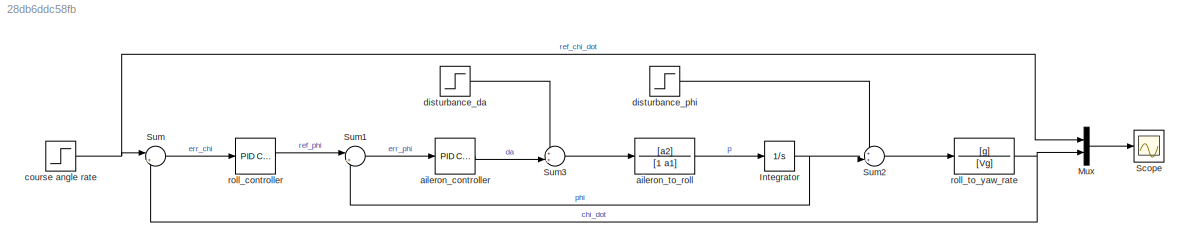
MODEL slx_28db6ddc58fb
KIND model
CONFIG AbsTol = auto
CONFIG EnableMultiTasking = off
CONFIG FixedStep = auto
CONFIG MaxStep = auto
CONFIG MinStep = auto
CONFIG RelTol = 1e-3
CONFIG SampleTimeConstraint = Unconstrained
CONFIG SolverName = VariableStepAuto
CONFIG StartTime = 0.0
CONFIG StopTime = 10.0
BLOCK [Integrator] Integrator
BLOCK [Mux] Mux
  DisplayOption = bar
  Inputs = 2
BLOCK [Scope] Scope
  Floating = off
  NumInputPorts = 1
  ScopeSpecificationString = Simulink.scopes.TimeScopeBlockCfg('CurrentConfiguration', extmgr.ConfigurationSet(extmgr.Configuration('Core','General UI',true),extmgr.Configuration('Core','Source UI',true),extmgr.Configuration('Sources','WiredSimulink',true),extmgr.Configuration('Visuals','Time Domain',true,'SerializedDisplays',{struct('MinYLimReal','-0.13283','MaxYLimReal','1.1955','YLabelReal','','MinYLimMag','0.00000','MaxYL...<+1366ch>
BLOCK [Sum] Sum
  Inputs = |+-
BLOCK [Sum] Sum1
  Inputs = |+-
BLOCK [Sum] Sum2
  Inputs = ++|
BLOCK [Sum] Sum3
  Inputs = ++|
BLOCK [Reference] aileron_controller  REF=slpidlib/PID Controller
  LibrarySourceBlock = simulink/Continuous/PID Controller
  SourceBlock = slpidlib/PID Controller
  SourceType = PID 1dof
BLOCK [TransferFcn] aileron_to_roll
  Denominator = [1 a1]
  Numerator = [a2]
BLOCK [Step] course angle rate
  SampleTime = 0
BLOCK [Step] disturbance_da
  After = 0
  SampleTime = 0
BLOCK [Step] disturbance_phi
  After = 0
  SampleTime = 0
BLOCK [Reference] roll_controller  REF=slpidlib/PID Controller
  LibrarySourceBlock = simulink/Continuous/PID Controller
  SourceBlock = slpidlib/PID Controller
  SourceType = PID 1dof
BLOCK [TransferFcn] roll_to_yaw_rate
  Denominator = [Vg]
  Numerator = [g]
NET Integrator:1 -> Sum1:2, Sum2:2
LINE Mux:1 -> Scope:1
LINE Sum1:1 -> aileron_controller:1
LINE Sum2:1 -> roll_to_yaw_rate:1
LINE Sum3:1 -> aileron_to_roll:1
LINE Sum:1 -> roll_controller:1
LINE aileron_controller:1 -> Sum3:2
LINE aileron_to_roll:1 -> Integrator:1
NET course angle rate:1 -> Mux:1, Sum:1
LINE disturbance_da:1 -> Sum3:1
LINE disturbance_phi:1 -> Sum2:1
LINE roll_controller:1 -> Sum1:1
NET roll_to_yaw_rate:1 -> Mux:2, Sum:2
note: NET lines group one-source signal fan-out (src -> all destinations, sorted); 1:1 wires keep LINE
